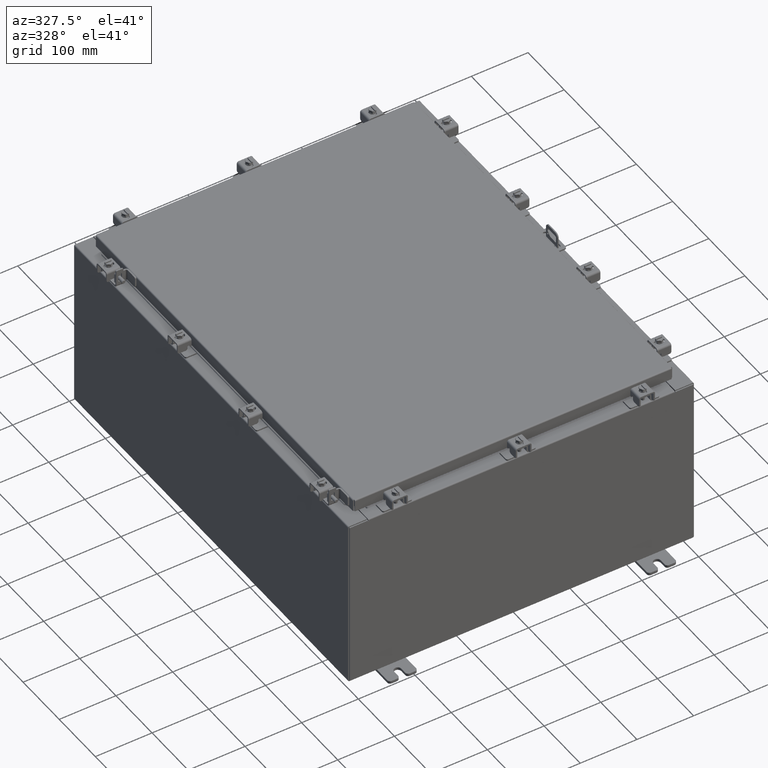
[diagram: clean part render]
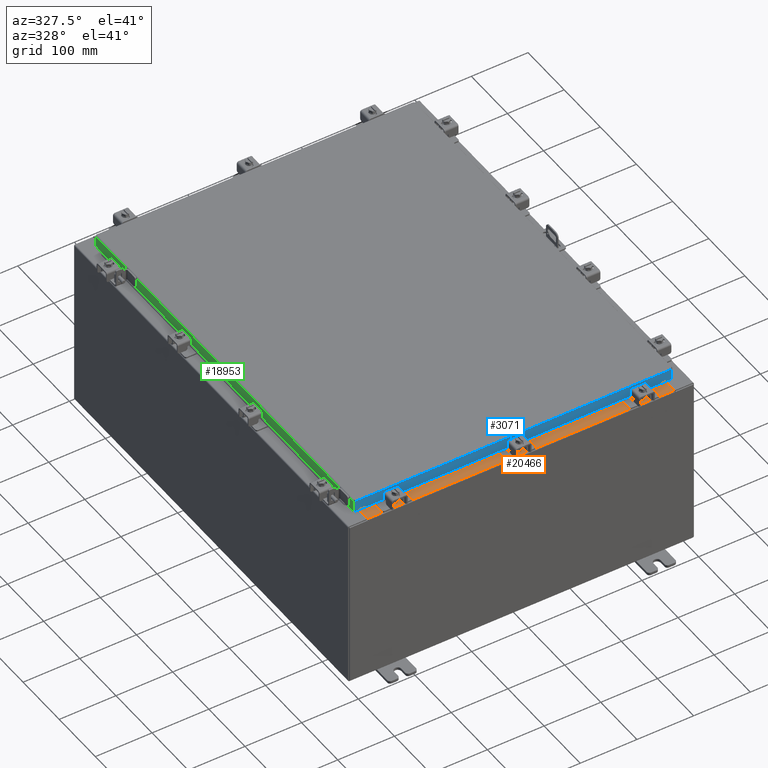
[diagram: same view with three faces highlighted in distinct colors, each labeled with its STEP entity id]
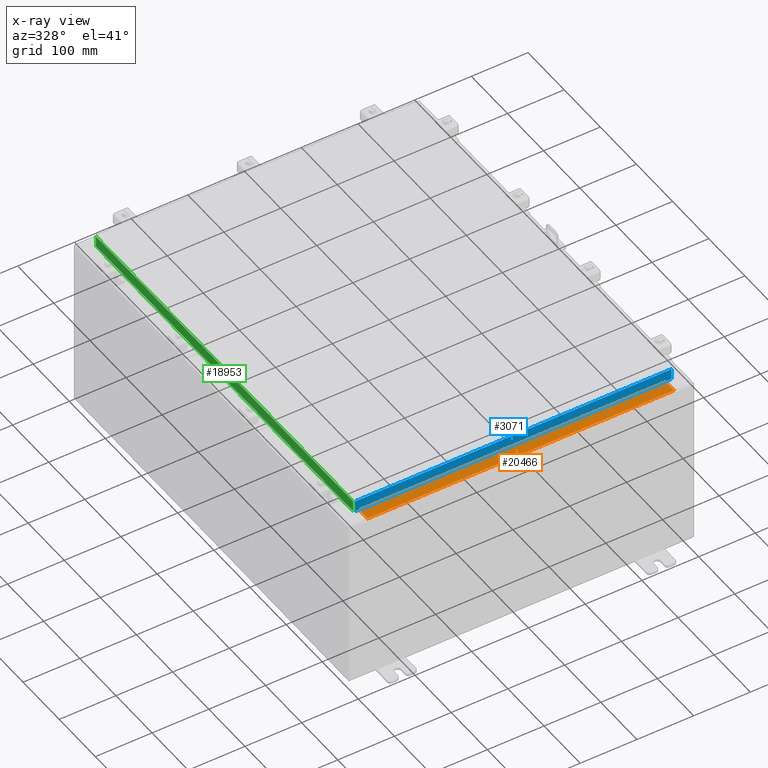
[diagram: x-ray of the same camera — body ghosted, the three highlighted faces saturated]
A machine part, auxiliary view with three faces highlighted in distinct colors.
The next image is the same camera in x-ray (body ghosted, the three faces saturated) — at least one of them is partly hidden behind the body in this view.
Their STEP definitions:

[orange] entity #20466 — the highlighted planar face has unit normal (-0, -0, 1).
#529 = CARTESIAN_POINT ( 'NONE',  ( -10.63720000000000200, -0.07469999999999973900, 6.000000000000001800 ) ) ;
#1358 = ORIENTED_EDGE ( 'NONE', *, *, #13919, .F. ) ;
#1409 = VECTOR ( 'NONE', #7174, 39.37007874015748100 ) ;
#1981 = LINE ( 'NONE', #3564, #1409 ) ;
#2184 = LINE ( 'NONE', #529, #11818 ) ;
#2948 = ORIENTED_EDGE ( 'NONE', *, *, #6447, .F. ) ;
#3182 = CARTESIAN_POINT ( 'NONE',  ( 10.63720000000000200, -1.287299999999998800, 6.000000000000006200 ) ) ;
#3253 = VERTEX_POINT ( 'NONE', #3182 ) ;
#3472 = VERTEX_POINT ( 'NONE', #6636 ) ;
#3564 = CARTESIAN_POINT ( 'NONE',  ( -3.422455537835030400E-018, -0.08770000000000026400, 6.000000000000001800 ) ) ;
#3747 = CARTESIAN_POINT ( 'NONE',  ( 10.63720000000000200, -1.300299999999999800, 6.000000000000006200 ) ) ;
#4311 = LINE ( 'NONE', #19004, #8550 ) ;
#6184 = PLANE ( 'NONE',  #10548 ) ;
#6447 = EDGE_CURVE ( 'NONE', #3253, #6759, #4311, .T. ) ;
#6636 = CARTESIAN_POINT ( 'NONE',  ( -10.63720000000000200, -0.08770000000000026400, 6.000000000000001800 ) ) ;
#6759 = VERTEX_POINT ( 'NONE', #12410 ) ;
#7174 = DIRECTION ( 'NONE',  ( -1.000000000000000000, 0.0000000000000000000, 0.0000000000000000000 ) ) ;
#7211 = FACE_OUTER_BOUND ( 'NONE', #9944, .T. ) ;
#8155 = EDGE_CURVE ( 'NONE', #15751, #3472, #1981, .T. ) ;
#8550 = VECTOR ( 'NONE', #18771, 39.37007874015748100 ) ;
#9337 = ORIENTED_EDGE ( 'NONE', *, *, #8155, .T. ) ;
#9841 = CARTESIAN_POINT ( 'NONE',  ( -3.422455537835030400E-018, 1.610972251716582100E-014, 6.000000000000001800 ) ) ;
#9944 = EDGE_LOOP ( 'NONE', ( #22783, #2948, #1358, #9337 ) ) ;
#10548 = AXIS2_PLACEMENT_3D ( 'NONE', #9841, #22231, #11653 ) ;
#11354 = DIRECTION ( 'NONE',  ( -0.0000000000000000000, 1.000000000000000000, -2.674785894579892700E-015 ) ) ;
#11653 = DIRECTION ( 'NONE',  ( 0.0000000000000000000, -1.000000000000000000, 2.674785894579892700E-015 ) ) ;
#11818 = VECTOR ( 'NONE', #11354, 39.37007874015748100 ) ;
#12410 = CARTESIAN_POINT ( 'NONE',  ( -10.63720000000000200, -1.287299999999998100, 6.000000000000004400 ) ) ;
#13109 = LINE ( 'NONE', #3747, #18912 ) ;
#13919 = EDGE_CURVE ( 'NONE', #15751, #3253, #13109, .T. ) ;
#15751 = VERTEX_POINT ( 'NONE', #22646 ) ;
#18771 = DIRECTION ( 'NONE',  ( -1.000000000000000000, 0.0000000000000000000, 0.0000000000000000000 ) ) ;
#18912 = VECTOR ( 'NONE', #19782, 39.37007874015748100 ) ;
#19004 = CARTESIAN_POINT ( 'NONE',  ( 10.63720000000000400, -1.287299999999998800, 6.000000000000003600 ) ) ;
#19030 = EDGE_CURVE ( 'NONE', #6759, #3472, #2184, .T. ) ;
#19782 = DIRECTION ( 'NONE',  ( -0.0000000000000000000, -1.000000000000000000, 3.566381192773190000E-015 ) ) ;
#20466 = ADVANCED_FACE ( 'NONE', ( #7211 ), #6184, .T. ) ;
#22231 = DIRECTION ( 'NONE',  ( 0.0000000000000000000, 2.674785894579892700E-015, 1.000000000000000000 ) ) ;
#22646 = CARTESIAN_POINT ( 'NONE',  ( 10.63720000000000400, -0.08770000000000002800, 6.000000000000001800 ) ) ;
#22783 = ORIENTED_EDGE ( 'NONE', *, *, #19030, .F. ) ;

[blue] entity #3071 — the highlighted planar face has unit normal (0, 1, -0).
#34 = PLANE ( 'NONE',  #16035 ) ;
#161 = CARTESIAN_POINT ( 'NONE',  ( 10.98915786437626900, -14.09400000000000300, -0.8499999999999996400 ) ) ;
#188 = VECTOR ( 'NONE', #22264, 39.37007874015748100 ) ;
#1327 = EDGE_CURVE ( 'NONE', #9264, #18873, #10353, .T. ) ;
#1606 = LINE ( 'NONE', #6409, #6945 ) ;
#2492 = EDGE_LOOP ( 'NONE', ( #16982, #20226, #10691, #14649, #18847, #16195 ) ) ;
#2999 = VERTEX_POINT ( 'NONE', #18334 ) ;
#3071 = ADVANCED_FACE ( 'NONE', ( #20266 ), #34, .F. ) ;
#3705 = CARTESIAN_POINT ( 'NONE',  ( 10.23915786437626700, -14.09399999999999900, -0.8500000000000012000 ) ) ;
#3707 = DIRECTION ( 'NONE',  ( -1.000000000000000000, 0.0000000000000000000, 0.0000000000000000000 ) ) ;
#4475 = DIRECTION ( 'NONE',  ( 0.0000000000000000000, -2.818880942772360500E-015, -1.000000000000000000 ) ) ;
#4631 = CARTESIAN_POINT ( 'NONE',  ( -10.98915786437626900, -14.09399999999999900, 3.999012166344522900E-014 ) ) ;
#4745 = EDGE_CURVE ( 'NONE', #2999, #15770, #6536, .T. ) ;
#5454 = VECTOR ( 'NONE', #3707, 39.37007874015748100 ) ;
#6202 = CARTESIAN_POINT ( 'NONE',  ( 10.98915786437624400, -14.09400000000000100, -0.08770000000000224800 ) ) ;
#6409 = CARTESIAN_POINT ( 'NONE',  ( 10.98915786437626900, -14.09400000000000100, -0.07469999999999978000 ) ) ;
#6536 = LINE ( 'NONE', #4631, #15540 ) ;
#6945 = VECTOR ( 'NONE', #13614, 39.37007874015748100 ) ;
#7376 = EDGE_CURVE ( 'NONE', #2999, #15605, #9639, .T. ) ;
#7440 = DIRECTION ( 'NONE',  ( 9.864047639155998000E-017, 1.000000000000000000, -2.818880942772360500E-015 ) ) ;
#7873 = CARTESIAN_POINT ( 'NONE',  ( -1.390238874262646300E-015, -14.09399999999999900, 3.999012166344522900E-014 ) ) ;
#8417 = DIRECTION ( 'NONE',  ( 0.0000000000000000000, 2.818880942772360500E-015, 1.000000000000000000 ) ) ;
#8964 = LINE ( 'NONE', #12450, #22562 ) ;
#9264 = VERTEX_POINT ( 'NONE', #161 ) ;
#9368 = VERTEX_POINT ( 'NONE', #20028 ) ;
#9639 = LINE ( 'NONE', #12507, #18552 ) ;
#10311 = CARTESIAN_POINT ( 'NONE',  ( -10.98915786437626900, -14.09400000000000100, -0.8499999999999969800 ) ) ;
#10353 = LINE ( 'NONE', #22326, #188 ) ;
#10519 = EDGE_CURVE ( 'NONE', #15605, #9264, #1606, .T. ) ;
#10691 = ORIENTED_EDGE ( 'NONE', *, *, #11339, .F. ) ;
#11339 = EDGE_CURVE ( 'NONE', #9368, #15770, #8964, .T. ) ;
#12450 = CARTESIAN_POINT ( 'NONE',  ( 11.07799999999999800, -14.09400000000000300, -0.8499999999999996400 ) ) ;
#12507 = CARTESIAN_POINT ( 'NONE',  ( 11.07799999999999900, -14.09400000000000100, -0.08770000000000224800 ) ) ;
#13614 = DIRECTION ( 'NONE',  ( 0.0000000000000000000, -2.818880942772360500E-015, -1.000000000000000000 ) ) ;
#14649 = ORIENTED_EDGE ( 'NONE', *, *, #15366, .F. ) ;
#15366 = EDGE_CURVE ( 'NONE', #18873, #9368, #15574, .T. ) ;
#15540 = VECTOR ( 'NONE', #4475, 39.37007874015748100 ) ;
#15574 = LINE ( 'NONE', #18039, #5454 ) ;
#15605 = VERTEX_POINT ( 'NONE', #6202 ) ;
#15770 = VERTEX_POINT ( 'NONE', #10311 ) ;
#16035 = AXIS2_PLACEMENT_3D ( 'NONE', #7873, #7440, #8417 ) ;
#16195 = ORIENTED_EDGE ( 'NONE', *, *, #10519, .F. ) ;
#16982 = ORIENTED_EDGE ( 'NONE', *, *, #7376, .F. ) ;
#18039 = CARTESIAN_POINT ( 'NONE',  ( 10.23915786437626900, -14.09399999999999900, -0.8500000000000012000 ) ) ;
#18334 = CARTESIAN_POINT ( 'NONE',  ( -10.98915786437626700, -14.09399999999999900, -0.08770000000000224800 ) ) ;
#18552 = VECTOR ( 'NONE', #21296, 39.37007874015748100 ) ;
#18847 = ORIENTED_EDGE ( 'NONE', *, *, #1327, .F. ) ;
#18873 = VERTEX_POINT ( 'NONE', #3705 ) ;
#19495 = DIRECTION ( 'NONE',  ( -1.000000000000000000, 9.864047639156033700E-017, 1.233005954894504400E-016 ) ) ;
#20028 = CARTESIAN_POINT ( 'NONE',  ( -10.23915786437626900, -14.09399999999999900, -0.8500000000000012000 ) ) ;
#20226 = ORIENTED_EDGE ( 'NONE', *, *, #4745, .T. ) ;
#20266 = FACE_OUTER_BOUND ( 'NONE', #2492, .T. ) ;
#21296 = DIRECTION ( 'NONE',  ( 1.000000000000000000, -9.864047639155999200E-017, -9.196021172131615100E-046 ) ) ;
#22264 = DIRECTION ( 'NONE',  ( -1.000000000000000000, 9.864047639156033700E-017, 1.233005954894504400E-016 ) ) ;
#22326 = CARTESIAN_POINT ( 'NONE',  ( 11.07799999999999800, -14.09400000000000300, -0.8499999999999996400 ) ) ;
#22562 = VECTOR ( 'NONE', #19495, 39.37007874015748100 ) ;

[green] entity #18953 — the highlighted planar face has unit normal (1, 0, -0).
#63 = CARTESIAN_POINT ( 'NONE',  ( -11.07799999999999900, -14.09399999999999600, -0.08770000000000007000 ) ) ;
#245 = VERTEX_POINT ( 'NONE', #9872 ) ;
#295 = VECTOR ( 'NONE', #11321, 39.37007874015748100 ) ;
#569 = CARTESIAN_POINT ( 'NONE',  ( -11.07800000000000300, -14.09399999999999600, -0.8499999999999996400 ) ) ;
#917 = LINE ( 'NONE', #20182, #18869 ) ;
#1095 = ORIENTED_EDGE ( 'NONE', *, *, #21308, .F. ) ;
#1265 = CARTESIAN_POINT ( 'NONE',  ( -11.07799999999999600, -13.25515786437626200, -0.8500000000000012000 ) ) ;
#1418 = LINE ( 'NONE', #63, #6212 ) ;
#1430 = LINE ( 'NONE', #569, #295 ) ;
#1752 = VERTEX_POINT ( 'NONE', #9149 ) ;
#2137 = CARTESIAN_POINT ( 'NONE',  ( -11.07800000000000300, -14.00515786437626200, -0.8499999999999996400 ) ) ;
#2353 = VECTOR ( 'NONE', #11184, 39.37007874015748100 ) ;
#3227 = LINE ( 'NONE', #1265, #21659 ) ;
#3327 = FACE_OUTER_BOUND ( 'NONE', #6589, .T. ) ;
#4749 = CARTESIAN_POINT ( 'NONE',  ( -11.07799999999999900, -14.00515786437626400, -0.08770000000000007000 ) ) ;
#4912 = DIRECTION ( 'NONE',  ( -0.0000000000000000000, 1.000000000000000000, -0.0000000000000000000 ) ) ;
#5700 = CARTESIAN_POINT ( 'NONE',  ( -11.07799999999999900, 14.00515786437626900, 1.292858714020875700E-013 ) ) ;
#5703 = CARTESIAN_POINT ( 'NONE',  ( -11.07800000000000300, -14.09399999999999600, -0.8499999999999996400 ) ) ;
#5713 = ORIENTED_EDGE ( 'NONE', *, *, #17227, .F. ) ;
#5731 = DIRECTION ( 'NONE',  ( 1.000000000000000000, 3.414908049476327800E-031, -2.818880942772360100E-015 ) ) ;
#6212 = VECTOR ( 'NONE', #9077, 39.37007874015748100 ) ;
#6254 = LINE ( 'NONE', #5700, #15264 ) ;
#6589 = EDGE_LOOP ( 'NONE', ( #5713, #20846, #21888, #1095, #16313, #13062 ) ) ;
#7157 = LINE ( 'NONE', #5703, #2353 ) ;
#7671 = EDGE_CURVE ( 'NONE', #14744, #22145, #1430, .T. ) ;
#7725 = DIRECTION ( 'NONE',  ( -2.818880942772360100E-015, 6.982962677686265900E-015, -1.000000000000000000 ) ) ;
#9019 = VERTEX_POINT ( 'NONE', #10346 ) ;
#9077 = DIRECTION ( 'NONE',  ( 3.414908049476327800E-031, -1.000000000000000000, -9.308245715024052500E-046 ) ) ;
#9149 = CARTESIAN_POINT ( 'NONE',  ( -11.07800000000000300, 14.00515786437627400, -0.8499999999999963100 ) ) ;
#9872 = CARTESIAN_POINT ( 'NONE',  ( -11.07799999999999900, 14.00515786437626900, -0.08770000000000007000 ) ) ;
#10346 = CARTESIAN_POINT ( 'NONE',  ( -11.07799999999999600, 13.25515786437627400, -0.8500000000000012000 ) ) ;
#11184 = DIRECTION ( 'NONE',  ( -0.0000000000000000000, 1.000000000000000000, 1.211441035930299800E-016 ) ) ;
#11321 = DIRECTION ( 'NONE',  ( -0.0000000000000000000, 1.000000000000000000, 1.211441035930299800E-016 ) ) ;
#12817 = AXIS2_PLACEMENT_3D ( 'NONE', #12941, #5731, #18273 ) ;
#12941 = CARTESIAN_POINT ( 'NONE',  ( -11.07799999999999900, -3.783035137209876100E-030, 3.148837674004379000E-014 ) ) ;
#13062 = ORIENTED_EDGE ( 'NONE', *, *, #14852, .F. ) ;
#13974 = EDGE_CURVE ( 'NONE', #9019, #1752, #7157, .T. ) ;
#14744 = VERTEX_POINT ( 'NONE', #2137 ) ;
#14852 = EDGE_CURVE ( 'NONE', #17029, #14744, #917, .T. ) ;
#15264 = VECTOR ( 'NONE', #19991, 39.37007874015748100 ) ;
#16045 = EDGE_CURVE ( 'NONE', #245, #1752, #6254, .T. ) ;
#16313 = ORIENTED_EDGE ( 'NONE', *, *, #7671, .F. ) ;
#16503 = PLANE ( 'NONE',  #12817 ) ;
#17029 = VERTEX_POINT ( 'NONE', #4749 ) ;
#17227 = EDGE_CURVE ( 'NONE', #245, #17029, #1418, .T. ) ;
#18273 = DIRECTION ( 'NONE',  ( -2.818880942772360100E-015, 0.0000000000000000000, -1.000000000000000000 ) ) ;
#18869 = VECTOR ( 'NONE', #7725, 39.37007874015748100 ) ;
#18953 = ADVANCED_FACE ( 'NONE', ( #3327 ), #16503, .F. ) ;
#19991 = DIRECTION ( 'NONE',  ( -2.818880942772360100E-015, 6.982962677686265900E-015, -1.000000000000000000 ) ) ;
#20182 = CARTESIAN_POINT ( 'NONE',  ( -11.07799999999999900, -14.00515786437626500, -0.07469999999999978000 ) ) ;
#20846 = ORIENTED_EDGE ( 'NONE', *, *, #16045, .T. ) ;
#21308 = EDGE_CURVE ( 'NONE', #22145, #9019, #3227, .T. ) ;
#21477 = CARTESIAN_POINT ( 'NONE',  ( -11.07799999999999600, -13.25515786437625600, -0.8500000000000012000 ) ) ;
#21659 = VECTOR ( 'NONE', #4912, 39.37007874015748100 ) ;
#21888 = ORIENTED_EDGE ( 'NONE', *, *, #13974, .F. ) ;
#22145 = VERTEX_POINT ( 'NONE', #21477 ) ;